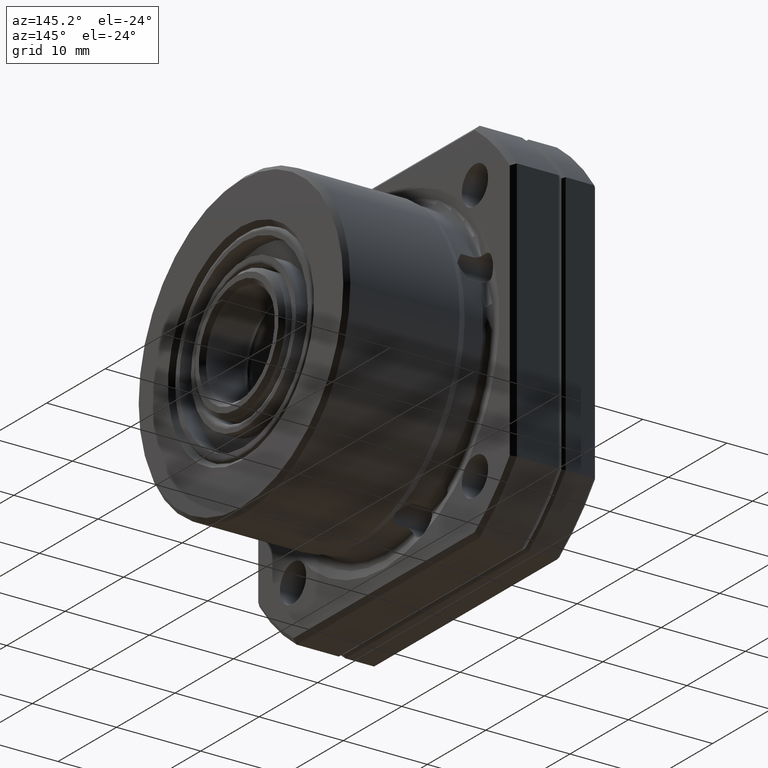
[diagram: clean part render]
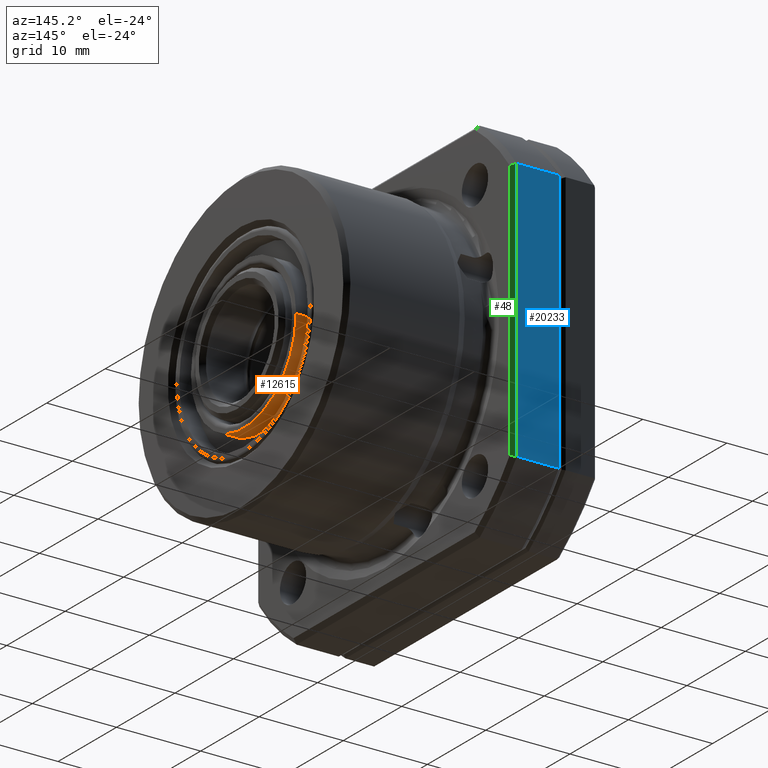
[diagram: same view with three faces highlighted in distinct colors, each labeled with its STEP entity id]
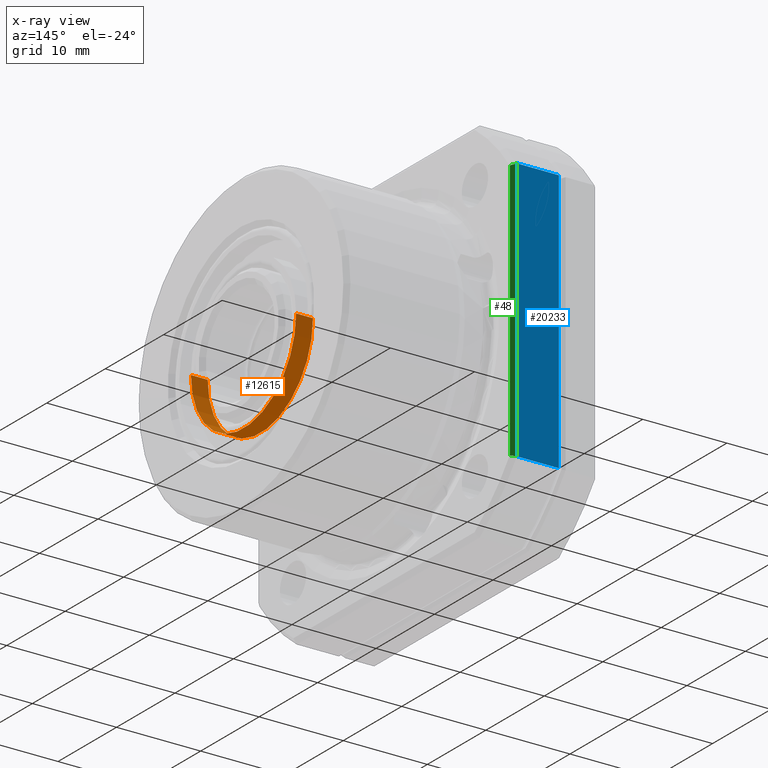
[diagram: x-ray of the same camera — body ghosted, the three highlighted faces saturated]
A machine part, auxiliary view with three faces highlighted in distinct colors.
The next image is the same camera in x-ray (body ghosted, the three faces saturated) — at least one of them is partly hidden behind the body in this view.
Their STEP definitions:

[orange] entity #12615 — the highlighted cylindrical surface (partial cylindrical patch) has radius 9 mm, axis along (1, 0, -0).
#6601 = CIRCLE ( 'NONE', #6662, 8.999999999999991100 ) ;
#6602 = CARTESIAN_POINT ( 'NONE',  ( 22.69999999999999900, 8.999999999999991100, 5.511274604087857600E-016 ) ) ;
#6603 = DIRECTION ( 'NONE',  ( 1.000000000000000000, 0.0000000000000000000, -1.232595164407830900E-032 ) ) ;
#6604 = VECTOR ( 'NONE', #6603, 1000.000000000000000 ) ;
#6605 = CARTESIAN_POINT ( 'NONE',  ( 75.34089506172838900, 8.999999999999991100, 5.511274604087850700E-016 ) ) ;
#6606 = LINE ( 'NONE', #6605, #6604 ) ;
#6607 = CARTESIAN_POINT ( 'NONE',  ( 20.69999999999999600, 8.999999999999991100, 5.511274604087857600E-016 ) ) ;
#6608 = CARTESIAN_POINT ( 'NONE',  ( 20.69999999999999600, -8.999999999999991100, -1.653273178848925900E-015 ) ) ;
#6609 = DIRECTION ( 'NONE',  ( 0.0000000000000000000, -1.000000000000000000, -1.836970198721029700E-016 ) ) ;
#6610 = DIRECTION ( 'NONE',  ( 1.000000000000000000, 0.0000000000000000000, -1.232595164407830900E-032 ) ) ;
#6611 = CARTESIAN_POINT ( 'NONE',  ( 20.69999999999999600, -1.540743955509788700E-030, -8.345841693631048900E-031 ) ) ;
#6612 = AXIS2_PLACEMENT_3D ( 'NONE', #6611, #6610, #6609 ) ;
#6613 = DIRECTION ( 'NONE',  ( 0.0000000000000000000, -1.000000000000000000, -1.836970198721029700E-016 ) ) ;
#6614 = DIRECTION ( 'NONE',  ( 1.000000000000000000, 0.0000000000000000000, -1.232595164407830900E-032 ) ) ;
#6615 = AXIS2_PLACEMENT_3D ( 'NONE', #6622, #6614, #6613 ) ;
#6616 = CIRCLE ( 'NONE', #6612, 8.999999999999991100 ) ;
#6617 = CYLINDRICAL_SURFACE ( 'NONE', #6615, 8.999999999999991100 ) ;
#6618 = FACE_OUTER_BOUND ( 'NONE', #12616, .T. ) ;
#6622 = CARTESIAN_POINT ( 'NONE',  ( 75.34089506172838900, 0.0000000000000000000, -1.508085199683126300E-030 ) ) ;
#6654 = DIRECTION ( 'NONE',  ( 1.000000000000000000, 0.0000000000000000000, -1.232595164407830900E-032 ) ) ;
#6655 = VECTOR ( 'NONE', #6654, 1000.000000000000000 ) ;
#6656 = CARTESIAN_POINT ( 'NONE',  ( 75.34089506172838900, -8.999999999999991100, -1.653273178848926700E-015 ) ) ;
#6657 = LINE ( 'NONE', #6656, #6655 ) ;
#6658 = CARTESIAN_POINT ( 'NONE',  ( 22.69999999999999900, -8.999999999999991100, -1.653273178848925900E-015 ) ) ;
#6659 = DIRECTION ( 'NONE',  ( 0.0000000000000000000, -1.000000000000000000, -1.836970198721029700E-016 ) ) ;
#6660 = DIRECTION ( 'NONE',  ( 1.000000000000000000, 0.0000000000000000000, -1.232595164407830900E-032 ) ) ;
#6661 = CARTESIAN_POINT ( 'NONE',  ( 22.69999999999999900, -1.540743955509788700E-030, -8.592360726512620300E-031 ) ) ;
#6662 = AXIS2_PLACEMENT_3D ( 'NONE', #6661, #6660, #6659 ) ;
#12615 = ADVANCED_FACE ( 'NONE', ( #6618 ), #6617, .T. ) ;
#12616 = EDGE_LOOP ( 'NONE', ( #12617, #12621, #12624, #12627 ) ) ;
#12617 = ORIENTED_EDGE ( 'NONE', *, *, #12618, .T. ) ;
#12618 = EDGE_CURVE ( 'NONE', #12619, #12620, #6616, .T. ) ;
#12619 = VERTEX_POINT ( 'NONE', #6608 ) ;
#12620 = VERTEX_POINT ( 'NONE', #6607 ) ;
#12621 = ORIENTED_EDGE ( 'NONE', *, *, #12622, .T. ) ;
#12622 = EDGE_CURVE ( 'NONE', #12620, #12623, #6606, .T. ) ;
#12623 = VERTEX_POINT ( 'NONE', #6602 ) ;
#12624 = ORIENTED_EDGE ( 'NONE', *, *, #12625, .F. ) ;
#12625 = EDGE_CURVE ( 'NONE', #12626, #12623, #6601, .T. ) ;
#12626 = VERTEX_POINT ( 'NONE', #6658 ) ;
#12627 = ORIENTED_EDGE ( 'NONE', *, *, #12628, .F. ) ;
#12628 = EDGE_CURVE ( 'NONE', #12619, #12626, #6657, .T. ) ;

[blue] entity #20233 — the highlighted planar face has unit normal (-0, 1, 0).
#7233 = DIRECTION ( 'NONE',  ( 1.000000000000000000, 0.0000000000000000000, 0.0000000000000000000 ) ) ;
#7234 = VECTOR ( 'NONE', #7233, 1000.000000000000000 ) ;
#7235 = CARTESIAN_POINT ( 'NONE',  ( -94.46891865289678900, 21.99999999999998600, 15.65247584249854600 ) ) ;
#7236 = LINE ( 'NONE', #7235, #7234 ) ;
#8958 = CARTESIAN_POINT ( 'NONE',  ( 0.5000000000000143200, 21.99999999999999300, -15.65247584249853900 ) ) ;
#8993 = CARTESIAN_POINT ( 'NONE',  ( 5.500000000000018700, 21.99999999999998600, 15.65247584249854600 ) ) ;
#8994 = CARTESIAN_POINT ( 'NONE',  ( 0.5000000000000143200, 21.99999999999998600, 15.65247584249854600 ) ) ;
#9042 = DIRECTION ( 'NONE',  ( -1.000000000000000000, -0.0000000000000000000, -0.0000000000000000000 ) ) ;
#9043 = VECTOR ( 'NONE', #9042, 1000.000000000000000 ) ;
#9044 = CARTESIAN_POINT ( 'NONE',  ( -94.46891865289678900, 21.99999999999999300, -15.65247584249853900 ) ) ;
#9050 = LINE ( 'NONE', #9044, #9043 ) ;
#9052 = CARTESIAN_POINT ( 'NONE',  ( 5.500000000000018700, 21.99999999999999300, -15.65247584249853900 ) ) ;
#9451 = LINE ( 'NONE', #9455, #9522 ) ;
#9455 = CARTESIAN_POINT ( 'NONE',  ( 5.500000000000006200, 21.99999999999999300, -15.65247584249853900 ) ) ;
#9506 = DIRECTION ( 'NONE',  ( 0.0000000000000000000, -1.577021341797097300E-016, 1.000000000000000000 ) ) ;
#9507 = DIRECTION ( 'NONE',  ( -0.0000000000000000000, 1.000000000000000000, 1.577021341797097300E-016 ) ) ;
#9508 = CARTESIAN_POINT ( 'NONE',  ( 10.00000000000000000, 21.99999999999999300, -22.00000000000000400 ) ) ;
#9509 = AXIS2_PLACEMENT_3D ( 'NONE', #9508, #9507, #9506 ) ;
#9510 = PLANE ( 'NONE',  #9509 ) ;
#9512 = FACE_OUTER_BOUND ( 'NONE', #20237, .T. ) ;
#9517 = DIRECTION ( 'NONE',  ( 0.0000000000000000000, -1.577021341797097300E-016, 1.000000000000000000 ) ) ;
#9518 = VECTOR ( 'NONE', #9517, 1000.000000000000000 ) ;
#9519 = CARTESIAN_POINT ( 'NONE',  ( 0.5000000000000073300, 21.99999999999998600, 15.65247584249854600 ) ) ;
#9520 = LINE ( 'NONE', #9519, #9518 ) ;
#9521 = DIRECTION ( 'NONE',  ( 0.0000000000000000000, 1.577021341797097300E-016, -1.000000000000000000 ) ) ;
#9522 = VECTOR ( 'NONE', #9521, 1000.000000000000000 ) ;
#12957 = EDGE_CURVE ( 'NONE', #14784, #14863, #7236, .T. ) ;
#14178 = VERTEX_POINT ( 'NONE', #8958 ) ;
#14784 = VERTEX_POINT ( 'NONE', #8994 ) ;
#14863 = VERTEX_POINT ( 'NONE', #8993 ) ;
#16337 = VERTEX_POINT ( 'NONE', #9052 ) ;
#16579 = EDGE_CURVE ( 'NONE', #16337, #14178, #9050, .T. ) ;
#20226 = ORIENTED_EDGE ( 'NONE', *, *, #20227, .T. ) ;
#20227 = EDGE_CURVE ( 'NONE', #14863, #16337, #9451, .T. ) ;
#20228 = EDGE_CURVE ( 'NONE', #14178, #14784, #9520, .T. ) ;
#20230 = ORIENTED_EDGE ( 'NONE', *, *, #12957, .T. ) ;
#20233 = ADVANCED_FACE ( 'NONE', ( #9512 ), #9510, .T. ) ;
#20237 = EDGE_LOOP ( 'NONE', ( #20240, #20241, #20230, #20226 ) ) ;
#20240 = ORIENTED_EDGE ( 'NONE', *, *, #16579, .T. ) ;
#20241 = ORIENTED_EDGE ( 'NONE', *, *, #20228, .T. ) ;

[green] entity #48 — the highlighted planar face has unit normal (0.7071, 0.7071, 0).
#22 = EDGE_CURVE ( 'NONE', #14863, #16769, #13674, .T. ) ;
#42 = ORIENTED_EDGE ( 'NONE', *, *, #44, .F. ) ;
#43 = ORIENTED_EDGE ( 'NONE', *, *, #16756, .F. ) ;
#44 = EDGE_CURVE ( 'NONE', #16337, #17158, #13697, .T. ) ;
#45 = ORIENTED_EDGE ( 'NONE', *, *, #20227, .F. ) ;
#46 = EDGE_LOOP ( 'NONE', ( #47, #43, #42, #45 ) ) ;
#47 = ORIENTED_EDGE ( 'NONE', *, *, #22, .T. ) ;
#48 = ADVANCED_FACE ( 'NONE', ( #13696 ), #13691, .T. ) ;
#8993 = CARTESIAN_POINT ( 'NONE',  ( 5.500000000000018700, 21.99999999999998600, 15.65247584249854600 ) ) ;
#9052 = CARTESIAN_POINT ( 'NONE',  ( 5.500000000000018700, 21.99999999999999300, -15.65247584249853900 ) ) ;
#9084 = CARTESIAN_POINT ( 'NONE',  ( 6.000000000000000000, 21.49999999999998600, 15.49193338482968600 ) ) ;
#9085 = DIRECTION ( 'NONE',  ( 0.0000000000000000000, -1.577021341797097300E-016, 1.000000000000000000 ) ) ;
#9086 = VECTOR ( 'NONE', #9085, 1000.000000000000000 ) ;
#9087 = CARTESIAN_POINT ( 'NONE',  ( 6.000000000000000000, 21.49999999999998600, 15.65247584249854600 ) ) ;
#9088 = LINE ( 'NONE', #9087, #9086 ) ;
#9114 = CARTESIAN_POINT ( 'NONE',  ( 6.000000000000000000, 21.49999999999998900, -15.49193338482968400 ) ) ;
#9451 = LINE ( 'NONE', #9455, #9522 ) ;
#9455 = CARTESIAN_POINT ( 'NONE',  ( 5.500000000000006200, 21.99999999999999300, -15.65247584249853900 ) ) ;
#9521 = DIRECTION ( 'NONE',  ( 0.0000000000000000000, 1.577021341797097300E-016, -1.000000000000000000 ) ) ;
#9522 = VECTOR ( 'NONE', #9521, 1000.000000000000000 ) ;
#13670 = CARTESIAN_POINT ( 'NONE',  ( 6.000000000000000000, 21.49999999999998600, 15.49193338482968600 ) ) ;
#13671 = CARTESIAN_POINT ( 'NONE',  ( 5.833375760270472600, 21.66662423972951500, 15.54571112695860100 ) ) ;
#13672 = CARTESIAN_POINT ( 'NONE',  ( 5.666708474222431000, 21.83329152577757200, 15.59922277381475000 ) ) ;
#13673 = CARTESIAN_POINT ( 'NONE',  ( 5.500000000000018700, 21.99999999999998600, 15.65247584249854600 ) ) ;
#13674 = B_SPLINE_CURVE_WITH_KNOTS ( 'NONE', 3,
 ( #13673, #13672, #13671, #13670 ),
 .UNSPECIFIED., .F., .F.,
 ( 4, 4 ),
 ( 0.0000000000000000000, 0.0007251026690851020300 ),
 .UNSPECIFIED. ) ;
#13691 = PLANE ( 'NONE',  #13737 ) ;
#13692 = CARTESIAN_POINT ( 'NONE',  ( 6.000000000000000000, 21.49999999999998900, -15.49193338482968400 ) ) ;
#13693 = CARTESIAN_POINT ( 'NONE',  ( 5.833375760270473400, 21.66662423972951900, -15.54571112695860100 ) ) ;
#13694 = CARTESIAN_POINT ( 'NONE',  ( 5.666708474222431800, 21.83329152577757500, -15.59922277381474500 ) ) ;
#13695 = CARTESIAN_POINT ( 'NONE',  ( 5.500000000000018700, 21.99999999999999300, -15.65247584249853900 ) ) ;
#13696 = FACE_OUTER_BOUND ( 'NONE', #46, .T. ) ;
#13697 = B_SPLINE_CURVE_WITH_KNOTS ( 'NONE', 3,
 ( #13695, #13694, #13693, #13692 ),
 .UNSPECIFIED., .F., .F.,
 ( 4, 4 ),
 ( 0.0000000000000000000, 0.0007251026690851036600 ),
 .UNSPECIFIED. ) ;
#13734 = DIRECTION ( 'NONE',  ( -0.7071067811865426900, 0.7071067811865524600, 0.0000000000000000000 ) ) ;
#13735 = DIRECTION ( 'NONE',  ( 0.7071067811865524600, 0.7071067811865426900, 1.115122484860628200E-016 ) ) ;
#13736 = CARTESIAN_POINT ( 'NONE',  ( 5.500000000000006200, 21.99999999999999300, -22.00000000000000400 ) ) ;
#13737 = AXIS2_PLACEMENT_3D ( 'NONE', #13736, #13735, #13734 ) ;
#14863 = VERTEX_POINT ( 'NONE', #8993 ) ;
#16337 = VERTEX_POINT ( 'NONE', #9052 ) ;
#16756 = EDGE_CURVE ( 'NONE', #17158, #16769, #9088, .T. ) ;
#16769 = VERTEX_POINT ( 'NONE', #9084 ) ;
#17158 = VERTEX_POINT ( 'NONE', #9114 ) ;
#20227 = EDGE_CURVE ( 'NONE', #14863, #16337, #9451, .T. ) ;